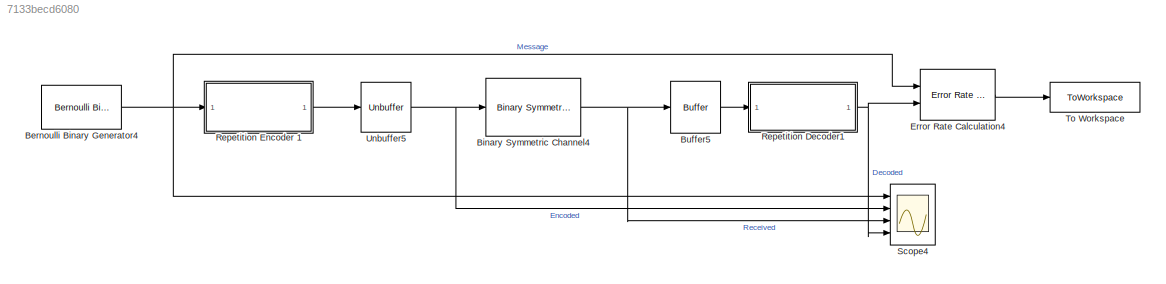
MODEL slx_7133becd6080
KIND model
CONFIG AbsTol = auto
CONFIG EnableMultiTasking = off
CONFIG FixedStep = auto
CONFIG MaxStep = auto
CONFIG MinStep = auto
CONFIG RelTol = 1e-3
CONFIG SampleTimeConstraint = Unconstrained
CONFIG SolverName = VariableStepAuto
CONFIG StartTime = 0.0
CONFIG StopTime = 100000
BLOCK [Reference] Bernoulli Binary Generator4  REF=commrandsrc3/Bernoulli Binary
Generator
  Ports = [0, 1]
  SourceBlock = commrandsrc3/Bernoulli Binary\nGenerator
  SourceProductBaseCode = CM
  SourceType = Bernoulli Binary Generator
BLOCK [Reference] Binary Symmetric Channel4  REF=commchan3/Binary Symmetric
Channel
  Ports = [1, 1]
  SourceBlock = commchan3/Binary Symmetric\nChannel
  SourceProductBaseCode = CM
  SourceType = Binary Symmetric Channel
BLOCK [Buffer] Buffer5
  N = n
  OutputFrames = off
BLOCK [Reference] Error Rate Calculation4  REF=commsink2/Error Rate
Calculation
  Ports = [2, 1]
  SourceBlock = commsink2/Error Rate\nCalculation
  SourceProductBaseCode = CM
  SourceType = Error Rate Calculation
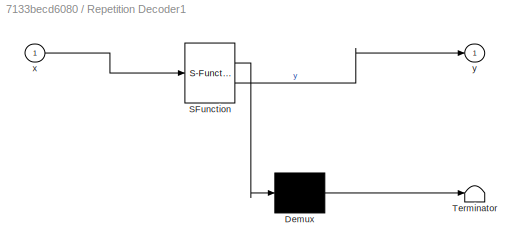
BLOCK [SubSystem] Repetition Decoder1
  ErrorFcn = Stateflow.Translate.translate
  PermitHierarchicalResolution = ExplicitOnly
  Ports = [1, 1]
  RequestExecContextInheritance = off
  SFBlockType = MATLAB Function
  TreatAsAtomicUnit = on
BLOCK [Demux] Repetition Decoder1/ Demux 
  Outputs = 1
  Ports = [1, 1]
BLOCK [S-Function] Repetition Decoder1/ SFunction 
  EnableBusSupport = on
  FunctionName = sf_sfun
  PortCounts = [1 2]
  Ports = [1, 2]
  SFcnIsStateOwnerBlock = off
  SFunctionDeploymentMode = off
  Tag = Stateflow S-Function 3
BLOCK [Terminator] Repetition Decoder1/ Terminator 
BLOCK [Inport] Repetition Decoder1/x
BLOCK [Outport] Repetition Decoder1/y
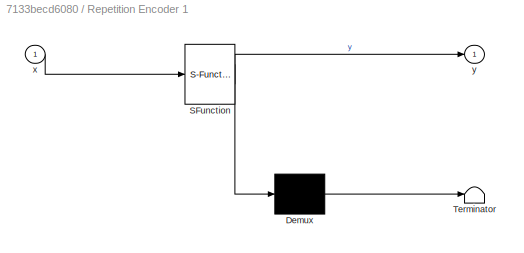
BLOCK [SubSystem] Repetition Encoder 1
  ErrorFcn = Stateflow.Translate.translate
  PermitHierarchicalResolution = ExplicitOnly
  Ports = [1, 1]
  RequestExecContextInheritance = off
  SFBlockType = MATLAB Function
  TreatAsAtomicUnit = on
BLOCK [Demux] Repetition Encoder 1/ Demux 
  Outputs = 1
  Ports = [1, 1]
BLOCK [S-Function] Repetition Encoder 1/ SFunction 
  EnableBusSupport = on
  FunctionName = sf_sfun
  Parameters = n
  PortCounts = [1 2]
  Ports = [1, 2]
  SFcnIsStateOwnerBlock = off
  SFunctionDeploymentMode = off
  Tag = Stateflow S-Function 4
BLOCK [Terminator] Repetition Encoder 1/ Terminator 
BLOCK [Inport] Repetition Encoder 1/x
BLOCK [Outport] Repetition Encoder 1/y
BLOCK [Scope] Scope4
  Floating = off
  NumInputPorts = 4
  Ports = [4]
  ScopeSpecificationString = Simulink.scopes.TimeScopeBlockCfg('CurrentConfiguration', extmgr.ConfigurationSet(extmgr.Configuration('Core','General UI',true),extmgr.Configuration('Core','Source UI',true),extmgr.Configuration('Sources','WiredSimulink',true),extmgr.Configuration('Visuals','Time Domain',true,'SerializedDisplays',{struct('MinYLimReal','-0.125','MaxYLimReal','1.125','YLabelReal','','MinYLimMag','0.00000','MaxYLimM...<+3484ch>
BLOCK [ToWorkspace] To Workspace
  FixptAsFi = on
  MaxDataPoints = 1
  Ports = [1]
  SampleTime = -1
  VariableName = ErrorStat
BLOCK [Unbuffer] Unbuffer5
  Ports = [1, 1]
NET Bernoulli Binary Generator4:1 -> Error Rate Calculation4:1, Repetition Encoder 1:1, Scope4:1
NET Binary Symmetric Channel4:1 -> Buffer5:1, Scope4:3
LINE Buffer5:1 -> Repetition Decoder1:1
LINE Error Rate Calculation4:1 -> To Workspace:1
NET Repetition Decoder1:1 -> Error Rate Calculation4:2, Scope4:4
LINE Repetition Encoder 1:1 -> Unbuffer5:1
NET Unbuffer5:1 -> Binary Symmetric Channel4:1, Scope4:2
note: NET lines group one-source signal fan-out (src -> all destinations, sorted); 1:1 wires keep LINE
CHART Repetition Encoder 1 states=1 transitions=1
  STATE_LABEL 'eML_blk_kernel()'
  STATE_LABEL "SCRIPT:\nfunction y = repetition_encoder(x, n)\ny = repelem([x],n)';\n"
CHART Repetition Decoder1 states=1 transitions=1
  STATE_LABEL 'eML_blk_kernel()'
  STATE_LABEL 'SCRIPT:\nfunction y = repetition_decoder(x)\nn0 = length(find(x == 0));\nn1 = length(find(x == 1));\nif(n0 >= n1)\n    y = 0;\nelse\n    y = 1;\nend'
CHART  states=0 transitions=0
CHART  states=0 transitions=0
